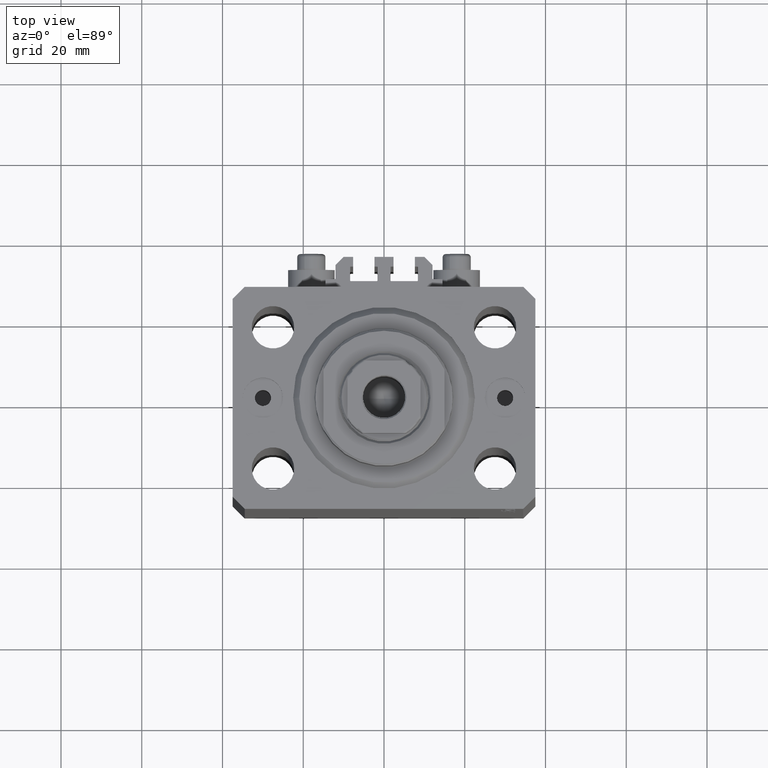
[diagram: clean part render]
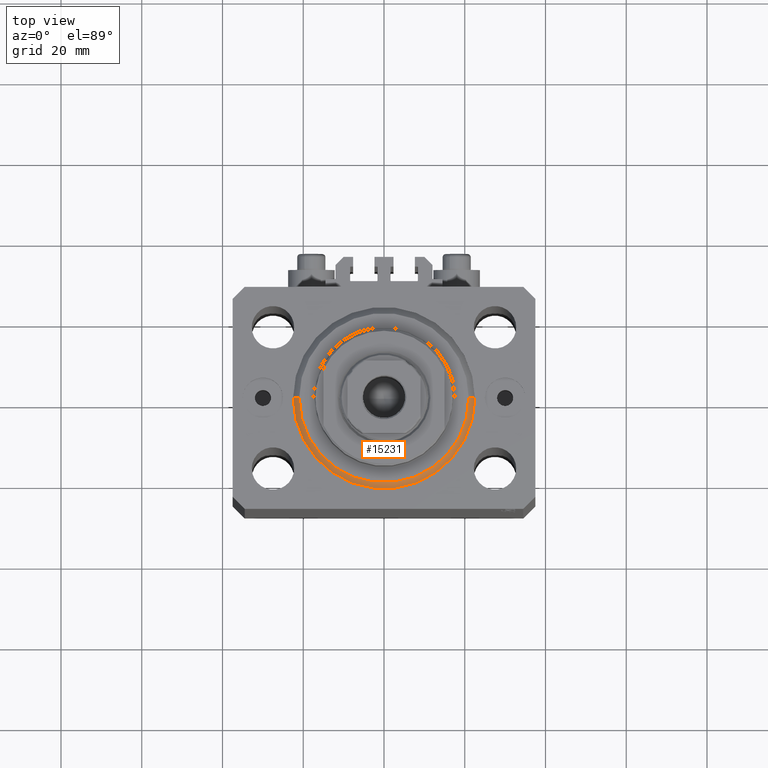
[diagram: same view with one face highlighted and labeled with its STEP entity id]
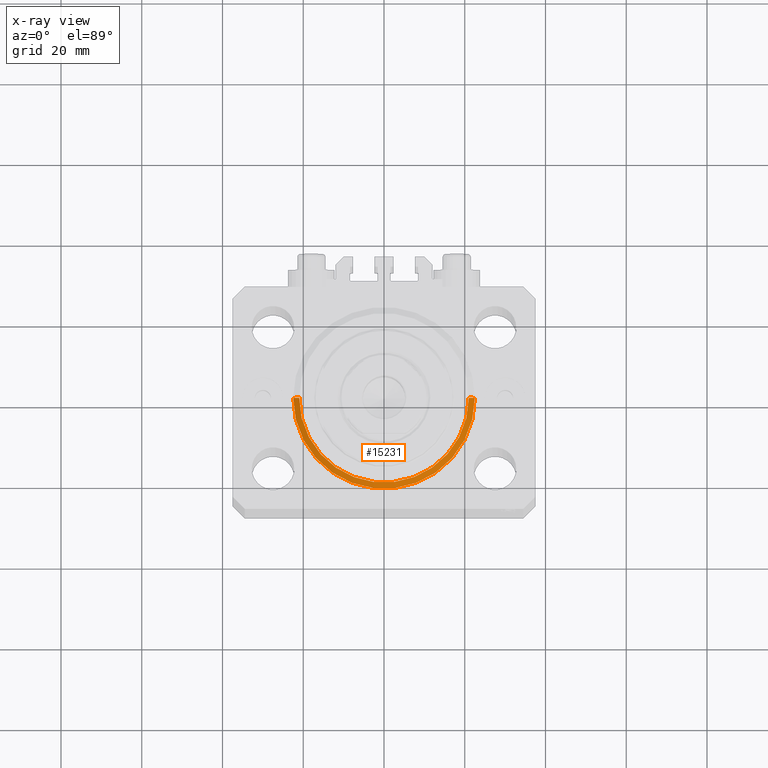
[diagram: x-ray of the same camera — body ghosted, the highlighted face saturated]
A machine part, top view. The second image highlights one B-rep face of the part: STEP entity #15231.
The next image is the same camera in x-ray: the body ghosted, the highlighted face saturated — about 0% of this face is hidden behind the body in this view.
In plain terms, the highlighted conical surface has half-angle 45 deg.
Its self-contained STEP definition (entity closure, byte-faithful):
#176 = EDGE_CURVE ( 'NONE', #43485, #24163, #19572, .T. ) ;
#2207 = EDGE_LOOP ( 'NONE', ( #20941, #23379, #30888, #41139 ) ) ;
#2287 = VERTEX_POINT ( 'NONE', #43647 ) ;
#3305 = EDGE_CURVE ( 'NONE', #43625, #24163, #33633, .T. ) ;
#5313 = CARTESIAN_POINT ( 'NONE',  ( 20.99999999999998934, 0.000000000000000000, 0.000000000000000000 ) ) ;
#6030 = DIRECTION ( 'NONE',  ( -0.000000000000000000, -0.000000000000000000, 1.000000000000000000 ) ) ;
#7467 = CIRCLE ( 'NONE', #41767, 20.99999999999998934 ) ;
#8073 = CARTESIAN_POINT ( 'NONE',  ( -22.50000000000000355, 2.755455298081545172E-15, 1.500000000000001332 ) ) ;
#9144 = DIRECTION ( 'NONE',  ( 1.000000000000000000, 0.000000000000000000, 0.000000000000000000 ) ) ;
#9576 = EDGE_CURVE ( 'NONE', #43485, #2287, #7467, .T. ) ;
#9847 = FACE_OUTER_BOUND ( 'NONE', #2207, .T. ) ;
#13053 = AXIS2_PLACEMENT_3D ( 'NONE', #15481, #30038, #30266 ) ;
#15231 = ADVANCED_FACE ( 'NONE', ( #9847 ), #19830, .T. ) ;
#15282 = CARTESIAN_POINT ( 'NONE',  ( 22.50000000000000355, 0.000000000000000000, 1.500000000000001332 ) ) ;
#15481 = CARTESIAN_POINT ( 'NONE',  ( 0.000000000000000000, 0.000000000000000000, 1.500000000000001332 ) ) ;
#19572 = LINE ( 'NONE', #15282, #38291 ) ;
#19830 = CONICAL_SURFACE ( 'NONE', #44213, 22.50000000000000355, 0.7853981633974517207 ) ;
#20941 = ORIENTED_EDGE ( 'NONE', *, *, #35086, .F. ) ;
#22983 = DIRECTION ( 'NONE',  ( 1.000000000000000000, 0.000000000000000000, 0.000000000000000000 ) ) ;
#23223 = DIRECTION ( 'NONE',  ( -0.000000000000000000, -0.000000000000000000, -1.000000000000000000 ) ) ;
#23334 = DIRECTION ( 'NONE',  ( -0.7071067811865500152, 8.659560562354963673E-17, 0.7071067811865451302 ) ) ;
#23379 = ORIENTED_EDGE ( 'NONE', *, *, #9576, .F. ) ;
#24163 = VERTEX_POINT ( 'NONE', #30683 ) ;
#24384 = VECTOR ( 'NONE', #23334, 1000.000000000000114 ) ;
#26918 = LINE ( 'NONE', #8073, #24384 ) ;
#30038 = DIRECTION ( 'NONE',  ( -0.000000000000000000, -0.000000000000000000, 1.000000000000000000 ) ) ;
#30266 = DIRECTION ( 'NONE',  ( 1.000000000000000000, 0.000000000000000000, 0.000000000000000000 ) ) ;
#30683 = CARTESIAN_POINT ( 'NONE',  ( 22.50000000000000355, 2.755455298081545172E-15, 1.500000000000001332 ) ) ;
#30888 = ORIENTED_EDGE ( 'NONE', *, *, #176, .T. ) ;
#33633 = CIRCLE ( 'NONE', #13053, 22.50000000000000355 ) ;
#35086 = EDGE_CURVE ( 'NONE', #2287, #43625, #26918, .T. ) ;
#36780 = DIRECTION ( 'NONE',  ( 0.7071067811865500152, 0.000000000000000000, 0.7071067811865451302 ) ) ;
#37296 = CARTESIAN_POINT ( 'NONE',  ( 0.000000000000000000, 0.000000000000000000, 0.000000000000000000 ) ) ;
#38291 = VECTOR ( 'NONE', #36780, 1000.000000000000114 ) ;
#40832 = CARTESIAN_POINT ( 'NONE',  ( -22.50000000000000355, 0.000000000000000000, 1.500000000000001332 ) ) ;
#41139 = ORIENTED_EDGE ( 'NONE', *, *, #3305, .F. ) ;
#41767 = AXIS2_PLACEMENT_3D ( 'NONE', #37296, #23223, #22983 ) ;
#42310 = CARTESIAN_POINT ( 'NONE',  ( 0.000000000000000000, 0.000000000000000000, 1.500000000000001332 ) ) ;
#43485 = VERTEX_POINT ( 'NONE', #5313 ) ;
#43625 = VERTEX_POINT ( 'NONE', #40832 ) ;
#43647 = CARTESIAN_POINT ( 'NONE',  ( -20.99999999999998934, 2.663606788145492628E-15, 0.000000000000000000 ) ) ;
#44213 = AXIS2_PLACEMENT_3D ( 'NONE', #42310, #6030, #9144 ) ;